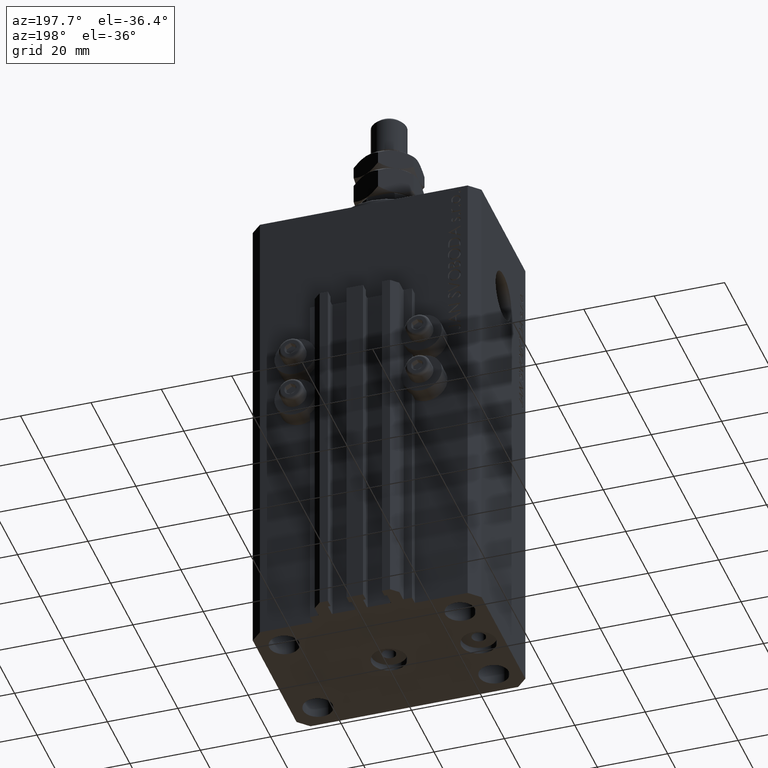
[diagram: clean part render]
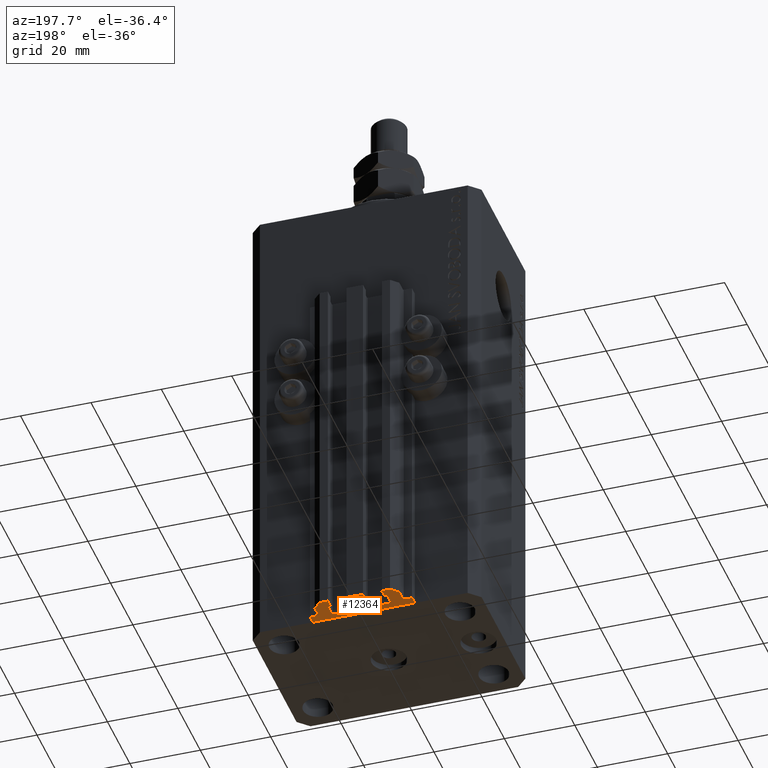
[diagram: same view with one face highlighted and labeled with its STEP entity id]
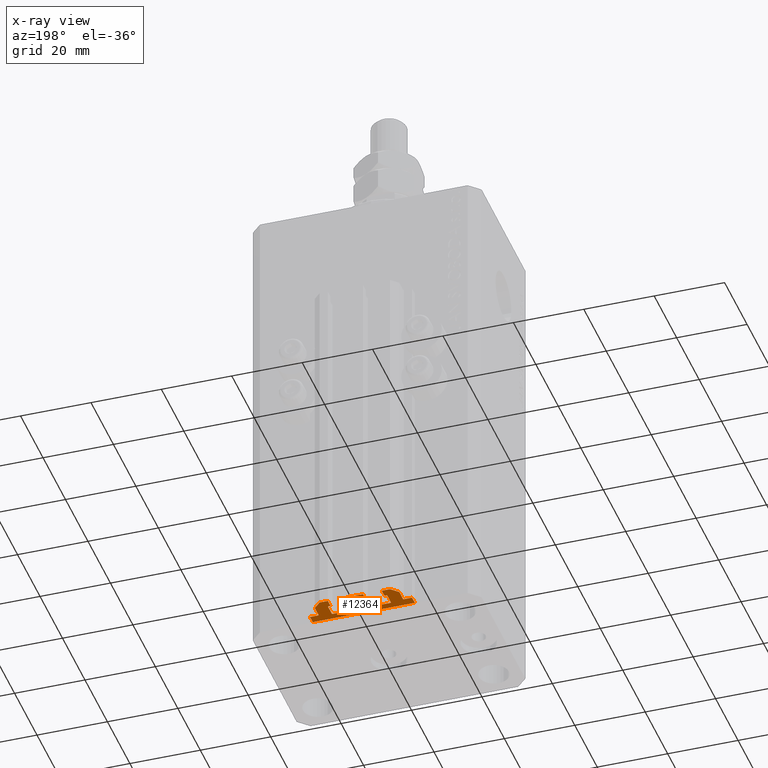
[diagram: x-ray of the same camera — body ghosted, the highlighted face saturated]
A machine part, auxiliary view. The second image highlights one B-rep face of the part: STEP entity #12364.
The next image is the same camera in x-ray: the body ghosted, the highlighted face saturated — about 0% of this face is hidden behind the body in this view.
In plain terms, the highlighted planar face has unit normal (0, 0, 1).
Its self-contained STEP definition (entity closure, byte-faithful):
#112 = CARTESIAN_POINT ( 'NONE',  ( -12.20000000000000107, 24.99999999999948841, -137.0000000000000000 ) ) ;
#153 = EDGE_CURVE ( 'NONE', #3740, #47814, #24120, .T. ) ;
#245 = ORIENTED_EDGE ( 'NONE', *, *, #17455, .F. ) ;
#619 = EDGE_CURVE ( 'NONE', #19867, #33227, #13555, .T. ) ;
#655 = ORIENTED_EDGE ( 'NONE', *, *, #42402, .T. ) ;
#1017 = EDGE_CURVE ( 'NONE', #41218, #20036, #30607, .T. ) ;
#1110 = CARTESIAN_POINT ( 'NONE',  ( -8.400000000000000355, 24.69999999999949480, -137.0000000000000000 ) ) ;
#1150 = CIRCLE ( 'NONE', #14683, 0.1999999999999987899 ) ;
#1474 = VECTOR ( 'NONE', #27703, 1000.000000000000000 ) ;
#1549 = VECTOR ( 'NONE', #45995, 1000.000000000000000 ) ;
#1626 = VECTOR ( 'NONE', #17492, 1000.000000000000000 ) ;
#1775 = CARTESIAN_POINT ( 'NONE',  ( -1.800000000000000933, 24.49999999999949551, -137.0000000000000000 ) ) ;
#2076 = CARTESIAN_POINT ( 'NONE',  ( -8.199999999999999289, 24.49999999999949551, -137.0000000000000000 ) ) ;
#2162 = LINE ( 'NONE', #10565, #1626 ) ;
#2275 = VECTOR ( 'NONE', #24706, 1000.000000000000000 ) ;
#2426 = DIRECTION ( 'NONE',  ( 1.000000000000000000, 0.000000000000000000, 0.000000000000000000 ) ) ;
#2690 = ORIENTED_EDGE ( 'NONE', *, *, #4420, .F. ) ;
#3681 = DIRECTION ( 'NONE',  ( 1.000000000000000000, 6.308085367188338373E-15, 0.000000000000000000 ) ) ;
#3740 = VERTEX_POINT ( 'NONE', #3892 ) ;
#3847 = CARTESIAN_POINT ( 'NONE',  ( 8.200000000000001066, 24.49999999999949196, -137.0000000000000000 ) ) ;
#3892 = CARTESIAN_POINT ( 'NONE',  ( -1.800000000000000933, 24.49999999999949551, -137.0000000000000000 ) ) ;
#4001 = DIRECTION ( 'NONE',  ( 1.000000000000000000, 0.000000000000000000, -0.000000000000000000 ) ) ;
#4183 = EDGE_CURVE ( 'NONE', #19647, #47965, #46307, .T. ) ;
#4219 = DIRECTION ( 'NONE',  ( -0.7071067811865507924, 0.7071067811865441310, 0.000000000000000000 ) ) ;
#4266 = DIRECTION ( 'NONE',  ( -0.7071067811865472397, -0.7071067811865479058, 0.000000000000000000 ) ) ;
#4269 = CARTESIAN_POINT ( 'NONE',  ( -2.350000000000003197, 30.49999999999949907, -137.0000000000000000 ) ) ;
#4420 = EDGE_CURVE ( 'NONE', #13999, #16347, #42299, .T. ) ;
#4561 = DIRECTION ( 'NONE',  ( -1.000000000000000000, -1.476360405086644852E-15, 0.000000000000000000 ) ) ;
#4610 = ORIENTED_EDGE ( 'NONE', *, *, #153, .T. ) ;
#4939 = CARTESIAN_POINT ( 'NONE',  ( 12.00000000000000178, 28.49999999999950973, -137.0000000000000000 ) ) ;
#5169 = VERTEX_POINT ( 'NONE', #4269 ) ;
#5285 = CARTESIAN_POINT ( 'NONE',  ( -1.600000000000003197, 27.89999999999950120, -137.0000000000000000 ) ) ;
#5295 = VERTEX_POINT ( 'NONE', #10881 ) ;
#5760 = CARTESIAN_POINT ( 'NONE',  ( 7.649999999999995026, 30.49999999999949196, -137.0000000000000000 ) ) ;
#6131 = DIRECTION ( 'NONE',  ( 0.000000000000000000, 0.000000000000000000, 1.000000000000000000 ) ) ;
#6338 = AXIS2_PLACEMENT_3D ( 'NONE', #12617, #20754, #38579 ) ;
#6548 = AXIS2_PLACEMENT_3D ( 'NONE', #33306, #6131, #2426 ) ;
#6717 = CARTESIAN_POINT ( 'NONE',  ( -8.399999999999998579, 24.69999999999949480, -137.0000000000000000 ) ) ;
#6883 = ORIENTED_EDGE ( 'NONE', *, *, #10775, .F. ) ;
#7139 = VECTOR ( 'NONE', #15730, 1000.000000000000000 ) ;
#7192 = CARTESIAN_POINT ( 'NONE',  ( -2.350000000000003197, 30.49999999999949907, -137.0000000000000000 ) ) ;
#7307 = CARTESIAN_POINT ( 'NONE',  ( -8.199999999999997513, 27.89999999999948699, -137.0000000000000000 ) ) ;
#7401 = DIRECTION ( 'NONE',  ( -6.776263578034385456E-17, -1.000000000000000000, 0.000000000000000000 ) ) ;
#7418 = DIRECTION ( 'NONE',  ( 1.000000000000000000, 0.000000000000000000, 0.000000000000000000 ) ) ;
#7433 = VECTOR ( 'NONE', #3681, 1000.000000000000000 ) ;
#7635 = EDGE_CURVE ( 'NONE', #5169, #44844, #7723, .T. ) ;
#7723 = LINE ( 'NONE', #35135, #23809 ) ;
#7788 = VECTOR ( 'NONE', #8793, 1000.000000000000000 ) ;
#7872 = CARTESIAN_POINT ( 'NONE',  ( 7.649999999999995914, 28.09999999999950404, -137.0000000000000000 ) ) ;
#8086 = LINE ( 'NONE', #41220, #45685 ) ;
#8154 = CARTESIAN_POINT ( 'NONE',  ( 12.20000000000000284, 24.99999999999950617, -137.0000000000000000 ) ) ;
#8198 = LINE ( 'NONE', #12882, #16925 ) ;
#8218 = CARTESIAN_POINT ( 'NONE',  ( 8.400000000000000355, 27.89999999999950475, -137.0000000000000000 ) ) ;
#8261 = LINE ( 'NONE', #23350, #41303 ) ;
#8335 = ORIENTED_EDGE ( 'NONE', *, *, #45089, .F. ) ;
#8378 = VERTEX_POINT ( 'NONE', #31798 ) ;
#8721 = DIRECTION ( 'NONE',  ( 1.000000000000000000, 0.000000000000000000, 0.000000000000000000 ) ) ;
#8782 = CARTESIAN_POINT ( 'NONE',  ( 7.649999999999995026, 30.49999999999949196, -137.0000000000000000 ) ) ;
#8793 = DIRECTION ( 'NONE',  ( -1.000000000000000000, 1.476360405086644852E-15, 0.000000000000000000 ) ) ;
#9134 = VERTEX_POINT ( 'NONE', #8154 ) ;
#9143 = ORIENTED_EDGE ( 'NONE', *, *, #29950, .F. ) ;
#9214 = VECTOR ( 'NONE', #26039, 1000.000000000000000 ) ;
#10329 = CARTESIAN_POINT ( 'NONE',  ( 1.800000000000000933, 28.09999999999949694, -137.0000000000000000 ) ) ;
#10565 = CARTESIAN_POINT ( 'NONE',  ( 2.349999999999999645, 28.09999999999950049, -137.0000000000000000 ) ) ;
#10775 = EDGE_CURVE ( 'NONE', #32281, #26213, #18579, .T. ) ;
#10881 = CARTESIAN_POINT ( 'NONE',  ( -14.50000000000000000, 24.99999999999949196, -137.0000000000000000 ) ) ;
#11912 = CARTESIAN_POINT ( 'NONE',  ( -10.00000000000000000, 30.49999999999948841, -137.0000000000000000 ) ) ;
#12364 = ADVANCED_FACE ( 'NONE', ( #34632 ), #42052, .F. ) ;
#12449 = CARTESIAN_POINT ( 'NONE',  ( -8.199999999999997513, 28.09999999999948628, -137.0000000000000000 ) ) ;
#12617 = CARTESIAN_POINT ( 'NONE',  ( 12.20000000000000284, 25.19999999999950546, -137.0000000000000000 ) ) ;
#12722 = VECTOR ( 'NONE', #26567, 1000.000000000000000 ) ;
#12882 = CARTESIAN_POINT ( 'NONE',  ( 14.49999999999999822, 24.99999999999950617, -137.0000000000000000 ) ) ;
#12945 = ORIENTED_EDGE ( 'NONE', *, *, #4183, .F. ) ;
#12989 = CARTESIAN_POINT ( 'NONE',  ( 1.600000000000000533, 24.69999999999949480, -137.0000000000000000 ) ) ;
#13042 = VERTEX_POINT ( 'NONE', #32024 ) ;
#13102 = DIRECTION ( 'NONE',  ( 1.000000000000000000, 0.000000000000000000, 0.000000000000000000 ) ) ;
#13170 = VERTEX_POINT ( 'NONE', #46488 ) ;
#13216 = CARTESIAN_POINT ( 'NONE',  ( 1.800000000000000933, 24.69999999999949480, -137.0000000000000000 ) ) ;
#13300 = CARTESIAN_POINT ( 'NONE',  ( 1.599999999999999645, 24.69999999999949480, -137.0000000000000000 ) ) ;
#13368 = VERTEX_POINT ( 'NONE', #48450 ) ;
#13419 = DIRECTION ( 'NONE',  ( 1.000000000000000000, 0.000000000000000000, 0.000000000000000000 ) ) ;
#13544 = CARTESIAN_POINT ( 'NONE',  ( -8.399999999999996803, 27.89999999999948699, -137.0000000000000000 ) ) ;
#13555 = LINE ( 'NONE', #10329, #42426 ) ;
#13556 = CARTESIAN_POINT ( 'NONE',  ( -2.350000000000003197, 28.09999999999950049, -137.0000000000000000 ) ) ;
#13785 = ORIENTED_EDGE ( 'NONE', *, *, #40774, .T. ) ;
#13958 = EDGE_CURVE ( 'NONE', #5295, #32281, #47862, .T. ) ;
#13986 = CARTESIAN_POINT ( 'NONE',  ( 1.800000000000000933, 28.09999999999950049, -137.0000000000000000 ) ) ;
#13999 = VERTEX_POINT ( 'NONE', #3847 ) ;
#14683 = AXIS2_PLACEMENT_3D ( 'NONE', #33620, #22735, #15083 ) ;
#15036 = VERTEX_POINT ( 'NONE', #34846 ) ;
#15050 = ORIENTED_EDGE ( 'NONE', *, *, #20495, .T. ) ;
#15083 = DIRECTION ( 'NONE',  ( 1.000000000000000000, 0.000000000000000000, 0.000000000000000000 ) ) ;
#15227 = ORIENTED_EDGE ( 'NONE', *, *, #48594, .T. ) ;
#15389 = VERTEX_POINT ( 'NONE', #30966 ) ;
#15415 = CIRCLE ( 'NONE', #43007, 0.2000000000000016209 ) ;
#15457 = ORIENTED_EDGE ( 'NONE', *, *, #33739, .T. ) ;
#15470 = DIRECTION ( 'NONE',  ( 0.000000000000000000, 0.000000000000000000, 1.000000000000000000 ) ) ;
#15500 = CARTESIAN_POINT ( 'NONE',  ( -10.00000000000000000, 30.49999999999948841, -137.0000000000000000 ) ) ;
#15644 = CARTESIAN_POINT ( 'NONE',  ( -12.00000000000000000, 28.49999999999948841, -137.0000000000000000 ) ) ;
#15697 = ORIENTED_EDGE ( 'NONE', *, *, #22076, .F. ) ;
#15730 = DIRECTION ( 'NONE',  ( 0.000000000000000000, 1.000000000000000000, 0.000000000000000000 ) ) ;
#15952 = EDGE_CURVE ( 'NONE', #13170, #13042, #41740, .T. ) ;
#16012 = ORIENTED_EDGE ( 'NONE', *, *, #20279, .F. ) ;
#16165 = VECTOR ( 'NONE', #23317, 1000.000000000000000 ) ;
#16167 = CARTESIAN_POINT ( 'NONE',  ( 1.600000000000000533, 27.89999999999950120, -137.0000000000000000 ) ) ;
#16185 = ORIENTED_EDGE ( 'NONE', *, *, #26001, .F. ) ;
#16192 = DIRECTION ( 'NONE',  ( 0.000000000000000000, 0.000000000000000000, 1.000000000000000000 ) ) ;
#16347 = VERTEX_POINT ( 'NONE', #35224 ) ;
#16925 = VECTOR ( 'NONE', #30697, 1000.000000000000000 ) ;
#17290 = CARTESIAN_POINT ( 'NONE',  ( -12.00000000000000000, 25.19999999999949125, -137.0000000000000000 ) ) ;
#17344 = VECTOR ( 'NONE', #22768, 1000.000000000000000 ) ;
#17455 = EDGE_CURVE ( 'NONE', #32475, #23461, #42872, .T. ) ;
#17492 = DIRECTION ( 'NONE',  ( 0.000000000000000000, 1.000000000000000000, 0.000000000000000000 ) ) ;
#17552 = ORIENTED_EDGE ( 'NONE', *, *, #25469, .F. ) ;
#17594 = VERTEX_POINT ( 'NONE', #2076 ) ;
#17706 = DIRECTION ( 'NONE',  ( 0.000000000000000000, -1.000000000000000000, 0.000000000000000000 ) ) ;
#17786 = LINE ( 'NONE', #32857, #2275 ) ;
#17862 = DIRECTION ( 'NONE',  ( 0.000000000000000000, 0.000000000000000000, 1.000000000000000000 ) ) ;
#18579 = LINE ( 'NONE', #25991, #24615 ) ;
#18623 = LINE ( 'NONE', #8218, #9214 ) ;
#18832 = VECTOR ( 'NONE', #48062, 1000.000000000000000 ) ;
#18954 = ORIENTED_EDGE ( 'NONE', *, *, #29830, .F. ) ;
#19323 = CARTESIAN_POINT ( 'NONE',  ( 8.200000000000001066, 24.49999999999949196, -137.0000000000000000 ) ) ;
#19332 = VERTEX_POINT ( 'NONE', #13300 ) ;
#19634 = VECTOR ( 'NONE', #43318, 1000.000000000000000 ) ;
#19647 = VERTEX_POINT ( 'NONE', #41214 ) ;
#19688 = LINE ( 'NONE', #38726, #7788 ) ;
#19725 = CIRCLE ( 'NONE', #6338, 0.1999999999999987899 ) ;
#19867 = VERTEX_POINT ( 'NONE', #13986 ) ;
#20021 = CARTESIAN_POINT ( 'NONE',  ( -12.20000000000000107, 25.19999999999949125, -137.0000000000000000 ) ) ;
#20036 = VERTEX_POINT ( 'NONE', #24066 ) ;
#20199 = ORIENTED_EDGE ( 'NONE', *, *, #13958, .F. ) ;
#20279 = EDGE_CURVE ( 'NONE', #13368, #9134, #8198, .T. ) ;
#20393 = VERTEX_POINT ( 'NONE', #43764 ) ;
#20495 = EDGE_CURVE ( 'NONE', #32475, #17594, #1150, .T. ) ;
#20661 = ORIENTED_EDGE ( 'NONE', *, *, #1017, .T. ) ;
#20726 = ORIENTED_EDGE ( 'NONE', *, *, #7635, .T. ) ;
#20754 = DIRECTION ( 'NONE',  ( 0.000000000000000000, 0.000000000000000000, 1.000000000000000000 ) ) ;
#20967 = CARTESIAN_POINT ( 'NONE',  ( 8.200000000000001066, 27.89999999999950475, -137.0000000000000000 ) ) ;
#20987 = CARTESIAN_POINT ( 'NONE',  ( -7.650000000000000355, 28.09999999999948628, -137.0000000000000000 ) ) ;
#21352 = ORIENTED_EDGE ( 'NONE', *, *, #24837, .F. ) ;
#21498 = ORIENTED_EDGE ( 'NONE', *, *, #40551, .F. ) ;
#21589 = VERTEX_POINT ( 'NONE', #30881 ) ;
#21879 = EDGE_LOOP ( 'NONE', ( #20199, #45620, #44904, #23610, #36769, #9143, #16185, #12945, #45366, #245, #15050, #38198, #4610, #21352, #20661, #40687, #35229, #20726, #41995, #26193, #43257, #44387, #15227, #2690, #655, #15697, #13785, #44624, #28147, #21498, #8335, #17552, #15457, #16012, #18954, #6883 ) ) ;
#22076 = EDGE_CURVE ( 'NONE', #8378, #40372, #18623, .T. ) ;
#22135 = EDGE_CURVE ( 'NONE', #32279, #26034, #45069, .T. ) ;
#22525 = DIRECTION ( 'NONE',  ( 1.000000000000000000, 0.000000000000000000, 0.000000000000000000 ) ) ;
#22735 = DIRECTION ( 'NONE',  ( 0.000000000000000000, 0.000000000000000000, 1.000000000000000000 ) ) ;
#22768 = DIRECTION ( 'NONE',  ( 0.000000000000000000, -1.000000000000000000, 0.000000000000000000 ) ) ;
#23317 = DIRECTION ( 'NONE',  ( -1.000000000000000000, 0.000000000000000000, 0.000000000000000000 ) ) ;
#23350 = CARTESIAN_POINT ( 'NONE',  ( 9.999999999999994671, 30.49999999999949551, -137.0000000000000000 ) ) ;
#23392 = LINE ( 'NONE', #12989, #7139 ) ;
#23461 = VERTEX_POINT ( 'NONE', #13544 ) ;
#23610 = ORIENTED_EDGE ( 'NONE', *, *, #22135, .F. ) ;
#23613 = CARTESIAN_POINT ( 'NONE',  ( -1.600000000000000755, 24.69999999999949480, -137.0000000000000000 ) ) ;
#23683 = VERTEX_POINT ( 'NONE', #15500 ) ;
#23809 = VECTOR ( 'NONE', #37891, 1000.000000000000000 ) ;
#24066 = CARTESIAN_POINT ( 'NONE',  ( -1.800000000000000933, 28.09999999999949694, -137.0000000000000000 ) ) ;
#24120 = CIRCLE ( 'NONE', #24935, 0.1999999999999994282 ) ;
#24615 = VECTOR ( 'NONE', #22525, 1000.000000000000000 ) ;
#24706 = DIRECTION ( 'NONE',  ( 0.000000000000000000, 1.000000000000000000, 0.000000000000000000 ) ) ;
#24837 = EDGE_CURVE ( 'NONE', #41218, #47814, #44977, .T. ) ;
#24933 = VERTEX_POINT ( 'NONE', #13556 ) ;
#24935 = AXIS2_PLACEMENT_3D ( 'NONE', #48016, #17862, #13419 ) ;
#25408 = DIRECTION ( 'NONE',  ( 1.000000000000000000, 6.308085367188405427E-15, 0.000000000000000000 ) ) ;
#25469 = EDGE_CURVE ( 'NONE', #21589, #25488, #36443, .T. ) ;
#25488 = VERTEX_POINT ( 'NONE', #25565 ) ;
#25565 = CARTESIAN_POINT ( 'NONE',  ( 12.00000000000000178, 28.49999999999950973, -137.0000000000000000 ) ) ;
#25986 = VECTOR ( 'NONE', #8721, 1000.000000000000000 ) ;
#25990 = LINE ( 'NONE', #7192, #17344 ) ;
#25991 = CARTESIAN_POINT ( 'NONE',  ( -14.50000000000000000, 22.49999999999949907, -137.0000000000000000 ) ) ;
#26001 = EDGE_CURVE ( 'NONE', #47965, #20393, #17786, .T. ) ;
#26034 = VERTEX_POINT ( 'NONE', #17290 ) ;
#26039 = DIRECTION ( 'NONE',  ( -5.421010862427496532E-16, -1.000000000000000000, 0.000000000000000000 ) ) ;
#26083 = CARTESIAN_POINT ( 'NONE',  ( 8.400000000000000355, 24.69999999999949125, -137.0000000000000000 ) ) ;
#26187 = CIRCLE ( 'NONE', #26310, 0.2000000000000005107 ) ;
#26193 = ORIENTED_EDGE ( 'NONE', *, *, #619, .F. ) ;
#26213 = VERTEX_POINT ( 'NONE', #47639 ) ;
#26245 = DIRECTION ( 'NONE',  ( 0.000000000000000000, 0.000000000000000000, 1.000000000000000000 ) ) ;
#26310 = AXIS2_PLACEMENT_3D ( 'NONE', #20967, #32334, #47420 ) ;
#26567 = DIRECTION ( 'NONE',  ( -1.000000000000000000, 1.508455196501571429E-15, 0.000000000000000000 ) ) ;
#27703 = DIRECTION ( 'NONE',  ( -1.000000000000000000, 0.000000000000000000, 0.000000000000000000 ) ) ;
#27935 = DIRECTION ( 'NONE',  ( 0.000000000000000000, 0.000000000000000000, 1.000000000000000000 ) ) ;
#28033 = VECTOR ( 'NONE', #42633, 1000.000000000000000 ) ;
#28147 = ORIENTED_EDGE ( 'NONE', *, *, #29427, .F. ) ;
#28246 = LINE ( 'NONE', #5760, #19634 ) ;
#28281 = VECTOR ( 'NONE', #7401, 1000.000000000000000 ) ;
#29039 = VERTEX_POINT ( 'NONE', #8782 ) ;
#29427 = EDGE_CURVE ( 'NONE', #29039, #13170, #28246, .T. ) ;
#29489 = VECTOR ( 'NONE', #17706, 1000.000000000000000 ) ;
#29558 = DIRECTION ( 'NONE',  ( 1.000000000000000000, 0.000000000000000000, 0.000000000000000000 ) ) ;
#29830 = EDGE_CURVE ( 'NONE', #26213, #13368, #8086, .T. ) ;
#29950 = EDGE_CURVE ( 'NONE', #20393, #23683, #19688, .T. ) ;
#29952 = CARTESIAN_POINT ( 'NONE',  ( 12.20000000000000284, 25.19999999999950546, -137.0000000000000000 ) ) ;
#30170 = VERTEX_POINT ( 'NONE', #16167 ) ;
#30187 = CIRCLE ( 'NONE', #39629, 0.1999999999999987899 ) ;
#30278 = CARTESIAN_POINT ( 'NONE',  ( -1.800000000000000933, 27.89999999999950120, -137.0000000000000000 ) ) ;
#30433 = LINE ( 'NONE', #30911, #1549 ) ;
#30506 = LINE ( 'NONE', #112, #12722 ) ;
#30607 = CIRCLE ( 'NONE', #40883, 0.1999999999999979294 ) ;
#30697 = DIRECTION ( 'NONE',  ( -1.000000000000000000, 0.000000000000000000, 0.000000000000000000 ) ) ;
#30881 = CARTESIAN_POINT ( 'NONE',  ( 12.00000000000000355, 25.19999999999951257, -137.0000000000000000 ) ) ;
#30911 = CARTESIAN_POINT ( 'NONE',  ( -2.350000000000003197, 28.09999999999950049, -137.0000000000000000 ) ) ;
#30966 = CARTESIAN_POINT ( 'NONE',  ( 9.999999999999994671, 30.49999999999949551, -137.0000000000000000 ) ) ;
#31215 = CARTESIAN_POINT ( 'NONE',  ( 2.349999999999999645, 28.09999999999950049, -137.0000000000000000 ) ) ;
#31504 = DIRECTION ( 'NONE',  ( 1.000000000000000000, 0.000000000000000000, 0.000000000000000000 ) ) ;
#31798 = CARTESIAN_POINT ( 'NONE',  ( 8.400000000000000355, 27.89999999999950475, -137.0000000000000000 ) ) ;
#31827 = VECTOR ( 'NONE', #4219, 1000.000000000000000 ) ;
#32024 = CARTESIAN_POINT ( 'NONE',  ( 8.200000000000001066, 28.09999999999950759, -137.0000000000000000 ) ) ;
#32279 = VERTEX_POINT ( 'NONE', #44106 ) ;
#32281 = VERTEX_POINT ( 'NONE', #38396 ) ;
#32334 = DIRECTION ( 'NONE',  ( 0.000000000000000000, 0.000000000000000000, 1.000000000000000000 ) ) ;
#32368 = AXIS2_PLACEMENT_3D ( 'NONE', #20021, #27935, #13102 ) ;
#32475 = VERTEX_POINT ( 'NONE', #6717 ) ;
#32574 = EDGE_CURVE ( 'NONE', #5169, #24933, #25990, .T. ) ;
#32857 = CARTESIAN_POINT ( 'NONE',  ( -7.650000000000000355, 28.09999999999948628, -137.0000000000000000 ) ) ;
#33227 = VERTEX_POINT ( 'NONE', #31215 ) ;
#33306 = CARTESIAN_POINT ( 'NONE',  ( 1.800000000000000933, 27.89999999999950120, -137.0000000000000000 ) ) ;
#33375 = DIRECTION ( 'NONE',  ( 0.000000000000000000, 0.000000000000000000, 1.000000000000000000 ) ) ;
#33620 = CARTESIAN_POINT ( 'NONE',  ( -8.199999999999999289, 24.69999999999949480, -137.0000000000000000 ) ) ;
#33691 = EDGE_CURVE ( 'NONE', #24933, #20036, #30433, .T. ) ;
#33739 = EDGE_CURVE ( 'NONE', #21589, #9134, #19725, .T. ) ;
#33772 = EDGE_CURVE ( 'NONE', #15036, #26034, #45009, .T. ) ;
#33983 = DIRECTION ( 'NONE',  ( 0.000000000000000000, 0.000000000000000000, 1.000000000000000000 ) ) ;
#34169 = LINE ( 'NONE', #11912, #38060 ) ;
#34306 = EDGE_CURVE ( 'NONE', #19332, #30170, #23392, .T. ) ;
#34632 = FACE_OUTER_BOUND ( 'NONE', #21879, .T. ) ;
#34846 = CARTESIAN_POINT ( 'NONE',  ( -12.20000000000000107, 24.99999999999948841, -137.0000000000000000 ) ) ;
#34913 = EDGE_CURVE ( 'NONE', #33227, #44844, #2162, .T. ) ;
#35135 = CARTESIAN_POINT ( 'NONE',  ( -2.350000000000003197, 30.49999999999949907, -137.0000000000000000 ) ) ;
#35224 = CARTESIAN_POINT ( 'NONE',  ( 1.800000000000000933, 24.49999999999949196, -137.0000000000000000 ) ) ;
#35229 = ORIENTED_EDGE ( 'NONE', *, *, #32574, .F. ) ;
#35249 = EDGE_CURVE ( 'NONE', #15036, #5295, #30506, .T. ) ;
#36198 = CARTESIAN_POINT ( 'NONE',  ( 12.00000000000000178, 25.19999999999951257, -137.0000000000000000 ) ) ;
#36443 = LINE ( 'NONE', #36198, #18832 ) ;
#36769 = ORIENTED_EDGE ( 'NONE', *, *, #37933, .F. ) ;
#36869 = VECTOR ( 'NONE', #41364, 1000.000000000000000 ) ;
#37891 = DIRECTION ( 'NONE',  ( 1.000000000000000000, 0.000000000000000000, 0.000000000000000000 ) ) ;
#37933 = EDGE_CURVE ( 'NONE', #23683, #32279, #34169, .T. ) ;
#38060 = VECTOR ( 'NONE', #4266, 999.9999999999998863 ) ;
#38198 = ORIENTED_EDGE ( 'NONE', *, *, #48816, .F. ) ;
#38396 = CARTESIAN_POINT ( 'NONE',  ( -14.50000000000000000, 22.49999999999949907, -137.0000000000000000 ) ) ;
#38417 = DIRECTION ( 'NONE',  ( 1.000000000000000000, 0.000000000000000000, 0.000000000000000000 ) ) ;
#38579 = DIRECTION ( 'NONE',  ( 1.000000000000000000, 0.000000000000000000, 0.000000000000000000 ) ) ;
#38726 = CARTESIAN_POINT ( 'NONE',  ( -7.650000000000000355, 30.49999999999948486, -137.0000000000000000 ) ) ;
#38793 = LINE ( 'NONE', #4939, #31827 ) ;
#39629 = AXIS2_PLACEMENT_3D ( 'NONE', #48704, #33375, #7418 ) ;
#40036 = EDGE_CURVE ( 'NONE', #19867, #30170, #42839, .T. ) ;
#40372 = VERTEX_POINT ( 'NONE', #26083 ) ;
#40440 = CARTESIAN_POINT ( 'NONE',  ( -14.50000000000000000, 24.99999999999949196, -137.0000000000000000 ) ) ;
#40470 = AXIS2_PLACEMENT_3D ( 'NONE', #29952, #26245, #4001 ) ;
#40551 = EDGE_CURVE ( 'NONE', #15389, #29039, #8261, .T. ) ;
#40687 = ORIENTED_EDGE ( 'NONE', *, *, #33691, .F. ) ;
#40774 = EDGE_CURVE ( 'NONE', #8378, #13042, #26187, .T. ) ;
#40883 = AXIS2_PLACEMENT_3D ( 'NONE', #30278, #33983, #38417 ) ;
#41214 = CARTESIAN_POINT ( 'NONE',  ( -8.199999999999997513, 28.09999999999948628, -137.0000000000000000 ) ) ;
#41218 = VERTEX_POINT ( 'NONE', #5285 ) ;
#41220 = CARTESIAN_POINT ( 'NONE',  ( 14.49999999999999645, 22.49999999999949907, -137.0000000000000000 ) ) ;
#41267 = CARTESIAN_POINT ( 'NONE',  ( -1.600000000000000533, 27.89999999999950120, -137.0000000000000000 ) ) ;
#41303 = VECTOR ( 'NONE', #4561, 1000.000000000000000 ) ;
#41364 = DIRECTION ( 'NONE',  ( 0.000000000000000000, -1.000000000000000000, 0.000000000000000000 ) ) ;
#41740 = LINE ( 'NONE', #7872, #7433 ) ;
#41995 = ORIENTED_EDGE ( 'NONE', *, *, #34913, .F. ) ;
#42052 = PLANE ( 'NONE',  #40470 ) ;
#42299 = LINE ( 'NONE', #19323, #1474 ) ;
#42402 = EDGE_CURVE ( 'NONE', #13999, #40372, #30187, .T. ) ;
#42426 = VECTOR ( 'NONE', #25408, 1000.000000000000000 ) ;
#42633 = DIRECTION ( 'NONE',  ( 1.084202172485506406E-15, 1.000000000000000000, 0.000000000000000000 ) ) ;
#42705 = EDGE_CURVE ( 'NONE', #19647, #23461, #46716, .T. ) ;
#42839 = CIRCLE ( 'NONE', #6548, 0.1999999999999981515 ) ;
#42872 = LINE ( 'NONE', #1110, #28033 ) ;
#43007 = AXIS2_PLACEMENT_3D ( 'NONE', #13216, #16192, #31504 ) ;
#43257 = ORIENTED_EDGE ( 'NONE', *, *, #40036, .T. ) ;
#43318 = DIRECTION ( 'NONE',  ( 3.614007241618365534E-16, -1.000000000000000000, 0.000000000000000000 ) ) ;
#43764 = CARTESIAN_POINT ( 'NONE',  ( -7.650000000000000355, 30.49999999999948486, -137.0000000000000000 ) ) ;
#44106 = CARTESIAN_POINT ( 'NONE',  ( -12.00000000000000000, 28.49999999999948841, -137.0000000000000000 ) ) ;
#44328 = CARTESIAN_POINT ( 'NONE',  ( 2.349999999999999645, 30.49999999999949907, -137.0000000000000000 ) ) ;
#44365 = AXIS2_PLACEMENT_3D ( 'NONE', #7307, #15470, #29558 ) ;
#44387 = ORIENTED_EDGE ( 'NONE', *, *, #34306, .F. ) ;
#44624 = ORIENTED_EDGE ( 'NONE', *, *, #15952, .F. ) ;
#44844 = VERTEX_POINT ( 'NONE', #44328 ) ;
#44904 = ORIENTED_EDGE ( 'NONE', *, *, #33772, .T. ) ;
#44977 = LINE ( 'NONE', #41267, #28281 ) ;
#45009 = CIRCLE ( 'NONE', #32368, 0.2000000000000005107 ) ;
#45069 = LINE ( 'NONE', #15644, #36869 ) ;
#45089 = EDGE_CURVE ( 'NONE', #25488, #15389, #38793, .T. ) ;
#45366 = ORIENTED_EDGE ( 'NONE', *, *, #42705, .T. ) ;
#45620 = ORIENTED_EDGE ( 'NONE', *, *, #35249, .F. ) ;
#45685 = VECTOR ( 'NONE', #48643, 1000.000000000000000 ) ;
#45995 = DIRECTION ( 'NONE',  ( 1.000000000000000000, -6.308085367188365195E-15, 0.000000000000000000 ) ) ;
#46307 = LINE ( 'NONE', #12449, #25986 ) ;
#46488 = CARTESIAN_POINT ( 'NONE',  ( 7.649999999999995914, 28.09999999999950404, -137.0000000000000000 ) ) ;
#46716 = CIRCLE ( 'NONE', #44365, 0.1999999999999987899 ) ;
#46770 = LINE ( 'NONE', #1775, #16165 ) ;
#47420 = DIRECTION ( 'NONE',  ( 1.000000000000000000, 0.000000000000000000, 0.000000000000000000 ) ) ;
#47639 = CARTESIAN_POINT ( 'NONE',  ( 14.49999999999999645, 22.49999999999949907, -137.0000000000000000 ) ) ;
#47814 = VERTEX_POINT ( 'NONE', #23613 ) ;
#47862 = LINE ( 'NONE', #40440, #29489 ) ;
#47965 = VERTEX_POINT ( 'NONE', #20987 ) ;
#48016 = CARTESIAN_POINT ( 'NONE',  ( -1.800000000000000933, 24.69999999999949480, -137.0000000000000000 ) ) ;
#48062 = DIRECTION ( 'NONE',  ( 0.000000000000000000, 1.000000000000000000, 0.000000000000000000 ) ) ;
#48450 = CARTESIAN_POINT ( 'NONE',  ( 14.49999999999999822, 24.99999999999950617, -137.0000000000000000 ) ) ;
#48594 = EDGE_CURVE ( 'NONE', #19332, #16347, #15415, .T. ) ;
#48643 = DIRECTION ( 'NONE',  ( 6.938893903907212600E-16, 1.000000000000000000, 0.000000000000000000 ) ) ;
#48704 = CARTESIAN_POINT ( 'NONE',  ( 8.200000000000001066, 24.69999999999949125, -137.0000000000000000 ) ) ;
#48816 = EDGE_CURVE ( 'NONE', #3740, #17594, #46770, .T. ) ;